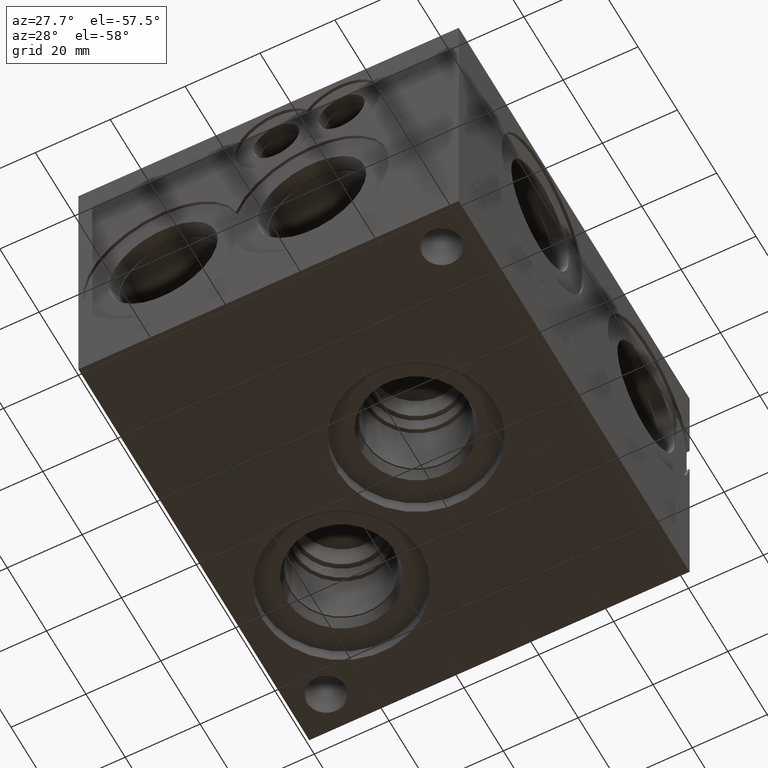
[diagram: clean part render]
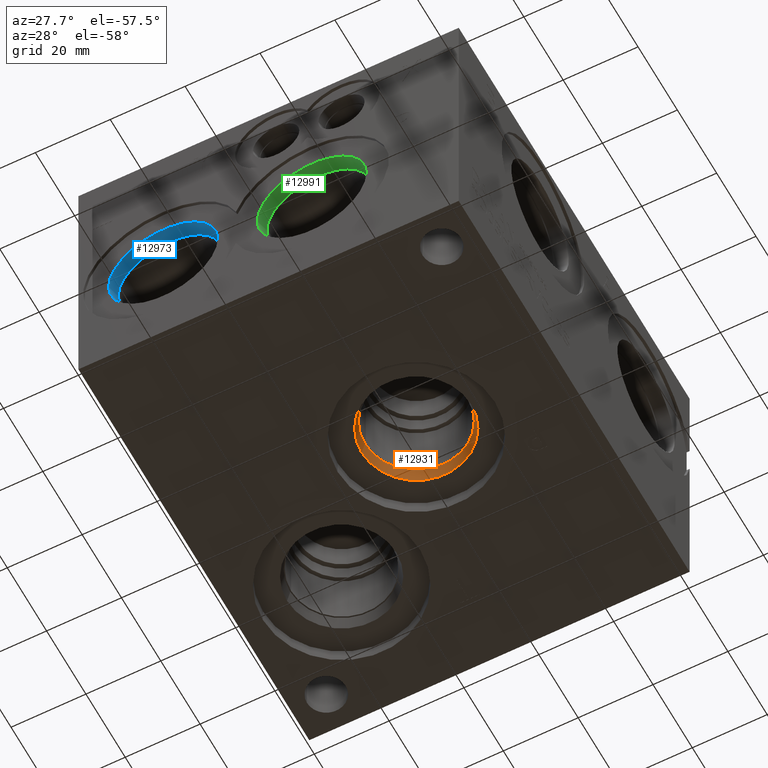
[diagram: same view with three faces highlighted in distinct colors, each labeled with its STEP entity id]
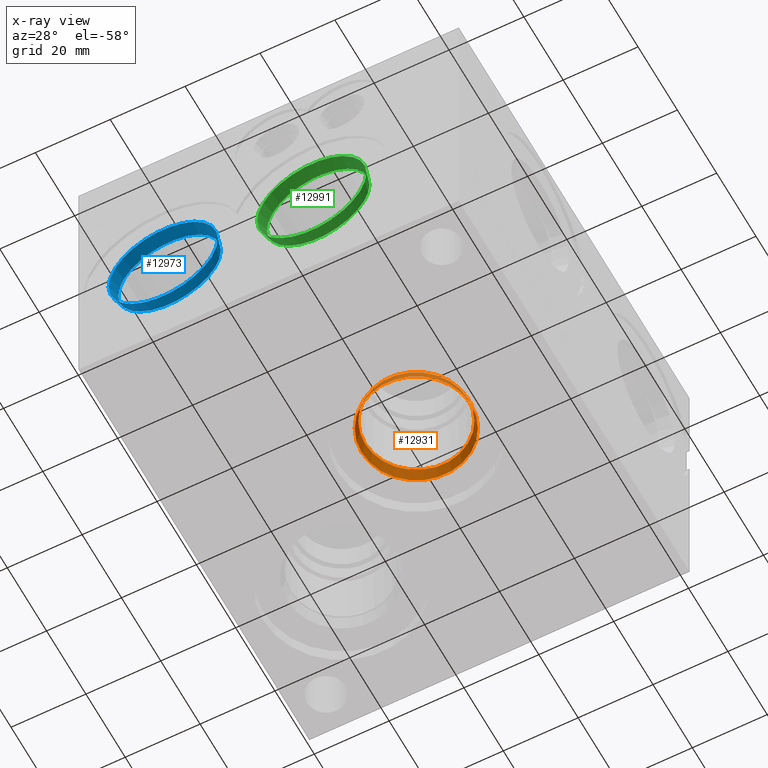
[diagram: x-ray of the same camera — body ghosted, the three highlighted faces saturated]
A machine part, auxiliary view with three faces highlighted in distinct colors.
The next image is the same camera in x-ray (body ghosted, the three faces saturated) — at least one of them is partly hidden behind the body in this view.
Their STEP definitions:

[orange] entity #12931 — the highlighted conical surface has half-angle 15.007 deg.
#90=CONICAL_SURFACE('',#13495,14.15415,0.261922137297759);
#171=CIRCLE('',#13493,14.5923);
#172=CIRCLE('',#13494,14.5923);
#173=CIRCLE('',#13496,13.716);
#174=CIRCLE('',#13497,13.716);
#1425=FACE_OUTER_BOUND('',#2146,.T.);
#2146=EDGE_LOOP('',(#10951,#10952,#10953,#10954,#10955,#10956));
#3455=LINE('',#21545,#4694);
#4694=VECTOR('',#15801,14.15415);
#6073=VERTEX_POINT('',#21539);
#6074=VERTEX_POINT('',#21540);
#6075=VERTEX_POINT('',#21544);
#6076=VERTEX_POINT('',#21546);
#7774=EDGE_CURVE('',#6073,#6074,#171,.T.);
#7775=EDGE_CURVE('',#6074,#6073,#172,.T.);
#7776=EDGE_CURVE('',#6074,#6075,#3455,.T.);
#7777=EDGE_CURVE('',#6075,#6076,#173,.T.);
#7778=EDGE_CURVE('',#6076,#6075,#174,.T.);
#10951=ORIENTED_EDGE('',*,*,#7774,.F.);
#10952=ORIENTED_EDGE('',*,*,#7775,.F.);
#10953=ORIENTED_EDGE('',*,*,#7776,.T.);
#10954=ORIENTED_EDGE('',*,*,#7777,.T.);
#10955=ORIENTED_EDGE('',*,*,#7778,.T.);
#10956=ORIENTED_EDGE('',*,*,#7776,.F.);
#12931=ADVANCED_FACE('',(#1425),#90,.F.);
#13493=AXIS2_PLACEMENT_3D('',#21541,#15795,#15796);
#13494=AXIS2_PLACEMENT_3D('',#21542,#15797,#15798);
#13495=AXIS2_PLACEMENT_3D('',#21543,#15799,#15800);
#13496=AXIS2_PLACEMENT_3D('',#21547,#15802,#15803);
#13497=AXIS2_PLACEMENT_3D('',#21548,#15804,#15805);
#15795=DIRECTION('center_axis',(0.,0.,1.));
#15796=DIRECTION('ref_axis',(1.,0.,0.));
#15797=DIRECTION('center_axis',(0.,0.,1.));
#15798=DIRECTION('ref_axis',(1.,0.,0.));
#15799=DIRECTION('center_axis',(0.,0.,-1.));
#15800=DIRECTION('ref_axis',(1.,0.,0.));
#15801=DIRECTION('',(0.258937610063224,3.17107115342792E-17,0.965894049104117));
#15802=DIRECTION('center_axis',(0.,0.,1.));
#15803=DIRECTION('ref_axis',(1.,0.,0.));
#15804=DIRECTION('center_axis',(0.,0.,1.));
#15805=DIRECTION('ref_axis',(1.,0.,0.));
#21539=CARTESIAN_POINT('',(76.5175,53.975,3.81));
#21540=CARTESIAN_POINT('',(47.3329,53.975,3.81));
#21541=CARTESIAN_POINT('Origin',(61.9252,53.975,3.81));
#21542=CARTESIAN_POINT('Origin',(61.9252,53.975,3.81));
#21543=CARTESIAN_POINT('Origin',(61.9252,53.975,5.44439555));
#21544=CARTESIAN_POINT('',(48.2092,53.975,7.0787911));
#21545=CARTESIAN_POINT('',(47.77105,53.975,5.44439555));
#21546=CARTESIAN_POINT('',(75.6412,53.975,7.0787911));
#21547=CARTESIAN_POINT('Origin',(61.9252,53.975,7.0787911));
#21548=CARTESIAN_POINT('Origin',(61.9252,53.975,7.0787911));

[blue] entity #12973 — the highlighted conical surface has half-angle 15 deg.
#106=CONICAL_SURFACE('',#13600,14.15415,0.261799389532319);
#236=CIRCLE('',#13601,14.5923);
#237=CIRCLE('',#13602,14.5923);
#238=CIRCLE('',#13603,13.716);
#239=CIRCLE('',#13604,13.716);
#1467=FACE_OUTER_BOUND('',#2194,.T.);
#2194=EDGE_LOOP('',(#11159,#11160,#11161,#11162,#11163,#11164));
#3493=LINE('',#21760,#4732);
#4732=VECTOR('',#16053,14.15415);
#6143=VERTEX_POINT('',#21755);
#6144=VERTEX_POINT('',#21756);
#6145=VERTEX_POINT('',#21759);
#6146=VERTEX_POINT('',#21761);
#7877=EDGE_CURVE('',#6143,#6144,#236,.T.);
#7878=EDGE_CURVE('',#6144,#6143,#237,.T.);
#7879=EDGE_CURVE('',#6144,#6145,#3493,.T.);
#7880=EDGE_CURVE('',#6145,#6146,#238,.T.);
#7881=EDGE_CURVE('',#6146,#6145,#239,.T.);
#11159=ORIENTED_EDGE('',*,*,#7877,.F.);
#11160=ORIENTED_EDGE('',*,*,#7878,.F.);
#11161=ORIENTED_EDGE('',*,*,#7879,.T.);
#11162=ORIENTED_EDGE('',*,*,#7880,.T.);
#11163=ORIENTED_EDGE('',*,*,#7881,.T.);
#11164=ORIENTED_EDGE('',*,*,#7879,.F.);
#12973=ADVANCED_FACE('',(#1467),#106,.F.);
#13600=AXIS2_PLACEMENT_3D('',#21754,#16047,#16048);
#13601=AXIS2_PLACEMENT_3D('',#21757,#16049,#16050);
#13602=AXIS2_PLACEMENT_3D('',#21758,#16051,#16052);
#13603=AXIS2_PLACEMENT_3D('',#21762,#16054,#16055);
#13604=AXIS2_PLACEMENT_3D('',#21763,#16056,#16057);
#16047=DIRECTION('center_axis',(0.,-1.,0.));
#16048=DIRECTION('ref_axis',(1.,0.,0.));
#16049=DIRECTION('center_axis',(0.,1.,0.));
#16050=DIRECTION('ref_axis',(1.,0.,0.));
#16051=DIRECTION('center_axis',(0.,1.,0.));
#16052=DIRECTION('ref_axis',(1.,0.,0.));
#16053=DIRECTION('',(0.258819046776634,0.965925825840491,-3.16961917193374E-17));
#16054=DIRECTION('center_axis',(0.,1.,0.));
#16055=DIRECTION('ref_axis',(1.,0.,0.));
#16056=DIRECTION('center_axis',(0.,1.,0.));
#16057=DIRECTION('ref_axis',(1.,0.,0.));
#21754=CARTESIAN_POINT('Origin',(22.225,2.42259805,31.75));
#21755=CARTESIAN_POINT('',(36.8173,0.7874,31.75));
#21756=CARTESIAN_POINT('',(7.6327,0.787399999999999,31.75));
#21757=CARTESIAN_POINT('Origin',(22.225,0.7874,31.75));
#21758=CARTESIAN_POINT('Origin',(22.225,0.7874,31.75));
#21759=CARTESIAN_POINT('',(8.509,4.0577961,31.75));
#21760=CARTESIAN_POINT('',(8.07085,2.42259805,31.75));
#21761=CARTESIAN_POINT('',(35.941,4.0577961,31.75));
#21762=CARTESIAN_POINT('Origin',(22.225,4.0577961,31.75));
#21763=CARTESIAN_POINT('Origin',(22.225,4.0577961,31.75));

[green] entity #12991 — the highlighted conical surface has half-angle 15 deg.
#112=CONICAL_SURFACE('',#13645,14.15415,0.261799389532319);
#261=CIRCLE('',#13643,14.5923);
#262=CIRCLE('',#13644,14.5923);
#263=CIRCLE('',#13646,13.716);
#264=CIRCLE('',#13647,13.716);
#1485=FACE_OUTER_BOUND('',#2216,.T.);
#2216=EDGE_LOOP('',(#11247,#11248,#11249,#11250,#11251,#11252));
#3506=LINE('',#21842,#4745);
#4745=VECTOR('',#16152,14.15415);
#6169=VERTEX_POINT('',#21836);
#6170=VERTEX_POINT('',#21837);
#6171=VERTEX_POINT('',#21841);
#6172=VERTEX_POINT('',#21843);
#7915=EDGE_CURVE('',#6169,#6170,#261,.T.);
#7916=EDGE_CURVE('',#6170,#6169,#262,.T.);
#7917=EDGE_CURVE('',#6170,#6171,#3506,.T.);
#7918=EDGE_CURVE('',#6171,#6172,#263,.T.);
#7919=EDGE_CURVE('',#6172,#6171,#264,.T.);
#11247=ORIENTED_EDGE('',*,*,#7915,.F.);
#11248=ORIENTED_EDGE('',*,*,#7916,.F.);
#11249=ORIENTED_EDGE('',*,*,#7917,.T.);
#11250=ORIENTED_EDGE('',*,*,#7918,.T.);
#11251=ORIENTED_EDGE('',*,*,#7919,.T.);
#11252=ORIENTED_EDGE('',*,*,#7917,.F.);
#12991=ADVANCED_FACE('',(#1485),#112,.F.);
#13643=AXIS2_PLACEMENT_3D('',#21838,#16146,#16147);
#13644=AXIS2_PLACEMENT_3D('',#21839,#16148,#16149);
#13645=AXIS2_PLACEMENT_3D('',#21840,#16150,#16151);
#13646=AXIS2_PLACEMENT_3D('',#21844,#16153,#16154);
#13647=AXIS2_PLACEMENT_3D('',#21845,#16155,#16156);
#16146=DIRECTION('center_axis',(0.,1.,0.));
#16147=DIRECTION('ref_axis',(1.,0.,0.));
#16148=DIRECTION('center_axis',(0.,1.,0.));
#16149=DIRECTION('ref_axis',(1.,0.,0.));
#16150=DIRECTION('center_axis',(0.,-1.,0.));
#16151=DIRECTION('ref_axis',(1.,0.,0.));
#16152=DIRECTION('',(0.258819046776634,0.965925825840491,-3.16961917193374E-17));
#16153=DIRECTION('center_axis',(0.,1.,0.));
#16154=DIRECTION('ref_axis',(1.,0.,0.));
#16155=DIRECTION('center_axis',(0.,1.,0.));
#16156=DIRECTION('ref_axis',(1.,0.,0.));
#21836=CARTESIAN_POINT('',(76.5175,0.7874,31.75));
#21837=CARTESIAN_POINT('',(47.3329,0.787399999999999,31.75));
#21838=CARTESIAN_POINT('Origin',(61.9252,0.7874,31.75));
#21839=CARTESIAN_POINT('Origin',(61.9252,0.7874,31.75));
#21840=CARTESIAN_POINT('Origin',(61.9252,2.42259805,31.75));
#21841=CARTESIAN_POINT('',(48.2092,4.0577961,31.75));
#21842=CARTESIAN_POINT('',(47.77105,2.42259805,31.75));
#21843=CARTESIAN_POINT('',(75.6412,4.0577961,31.75));
#21844=CARTESIAN_POINT('Origin',(61.9252,4.0577961,31.75));
#21845=CARTESIAN_POINT('Origin',(61.9252,4.0577961,31.75));